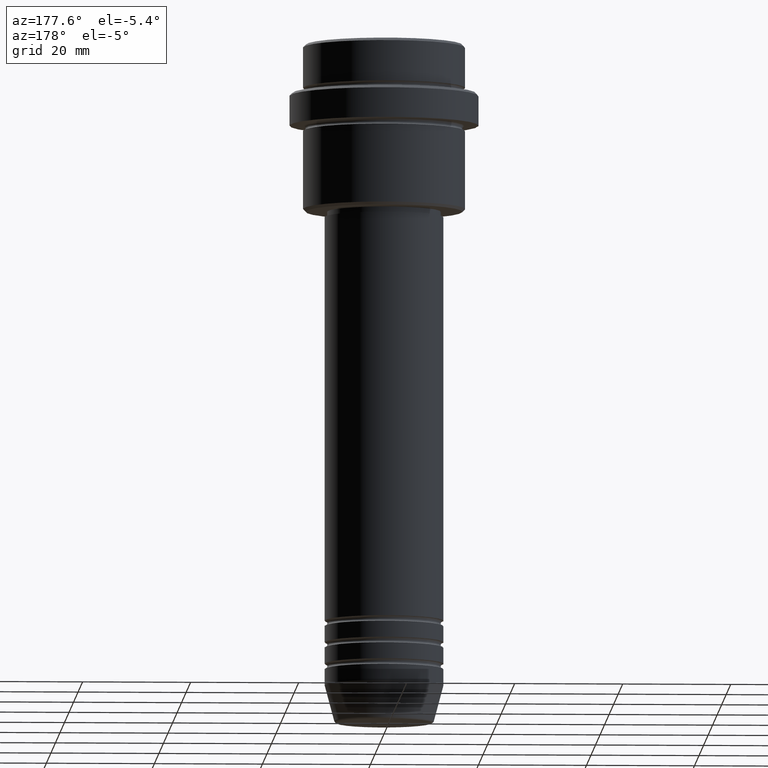
[diagram: clean part render]
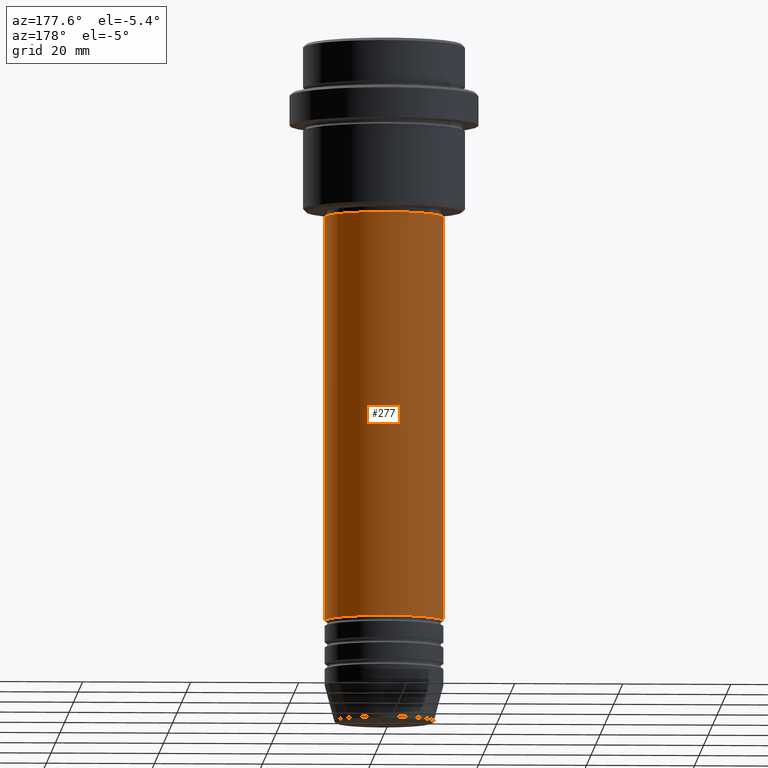
[diagram: same view with one face highlighted and labeled with its STEP entity id]
A machine part, auxiliary view. The second image highlights one B-rep face of the part: STEP entity #277.
In plain terms, the highlighted cylindrical surface (partial cylindrical patch) has radius 11 mm, axis along (-0, -0, 1).
Its self-contained STEP definition (entity closure, byte-faithful):
#13 = VERTEX_POINT ( 'NONE', #219 ) ;
#35 = CARTESIAN_POINT ( 'NONE',  ( -11.00000000000000000, 1.347111479062088405E-15, -106.9999999999998721 ) ) ;
#60 = CYLINDRICAL_SURFACE ( 'NONE', #328, 11.00000000000000000 ) ;
#61 = CARTESIAN_POINT ( 'NONE',  ( 0.000000000000000000, 0.000000000000000000, -31.99999999999997868 ) ) ;
#80 = CARTESIAN_POINT ( 'NONE',  ( 11.00000000000000000, 0.000000000000000000, -106.9999999999998721 ) ) ;
#84 = DIRECTION ( 'NONE',  ( -0.000000000000000000, -0.000000000000000000, 1.000000000000000000 ) ) ;
#176 = DIRECTION ( 'NONE',  ( 1.000000000000000000, 0.000000000000000000, 0.000000000000000000 ) ) ;
#197 = ORIENTED_EDGE ( 'NONE', *, *, #594, .T. ) ;
#217 = VERTEX_POINT ( 'NONE', #80 ) ;
#219 = CARTESIAN_POINT ( 'NONE',  ( 10.99999999999999822, 0.000000000000000000, -31.99999999999997868 ) ) ;
#265 = LINE ( 'NONE', #589, #700 ) ;
#277 = ADVANCED_FACE ( 'NONE', ( #850 ), #60, .T. ) ;
#289 = DIRECTION ( 'NONE',  ( 1.000000000000000000, 0.000000000000000000, 0.000000000000000000 ) ) ;
#328 = AXIS2_PLACEMENT_3D ( 'NONE', #1281, #84, #289 ) ;
#349 = EDGE_CURVE ( 'NONE', #217, #13, #1004, .T. ) ;
#374 = EDGE_LOOP ( 'NONE', ( #946, #197, #982, #1081 ) ) ;
#398 = EDGE_CURVE ( 'NONE', #217, #569, #467, .T. ) ;
#423 = CIRCLE ( 'NONE', #657, 10.99999999999999822 ) ;
#467 = CIRCLE ( 'NONE', #1262, 11.00000000000000000 ) ;
#569 = VERTEX_POINT ( 'NONE', #35 ) ;
#589 = CARTESIAN_POINT ( 'NONE',  ( -11.00000000000000000, 1.347111479062088405E-15, 0.000000000000000000 ) ) ;
#594 = EDGE_CURVE ( 'NONE', #569, #620, #265, .T. ) ;
#620 = VERTEX_POINT ( 'NONE', #734 ) ;
#657 = AXIS2_PLACEMENT_3D ( 'NONE', #61, #1157, #176 ) ;
#669 = DIRECTION ( 'NONE',  ( -0.000000000000000000, -0.000000000000000000, 1.000000000000000000 ) ) ;
#700 = VECTOR ( 'NONE', #1032, 1000.000000000000000 ) ;
#734 = CARTESIAN_POINT ( 'NONE',  ( -10.99999999999999822, 1.347111479062088207E-15, -31.99999999999997868 ) ) ;
#781 = CARTESIAN_POINT ( 'NONE',  ( 0.000000000000000000, 0.000000000000000000, -106.9999999999998721 ) ) ;
#850 = FACE_OUTER_BOUND ( 'NONE', #374, .T. ) ;
#946 = ORIENTED_EDGE ( 'NONE', *, *, #398, .T. ) ;
#982 = ORIENTED_EDGE ( 'NONE', *, *, #1369, .F. ) ;
#999 = CARTESIAN_POINT ( 'NONE',  ( 11.00000000000000000, 0.000000000000000000, 0.000000000000000000 ) ) ;
#1004 = LINE ( 'NONE', #999, #1066 ) ;
#1032 = DIRECTION ( 'NONE',  ( -0.000000000000000000, -0.000000000000000000, 1.000000000000000000 ) ) ;
#1066 = VECTOR ( 'NONE', #1304, 1000.000000000000000 ) ;
#1081 = ORIENTED_EDGE ( 'NONE', *, *, #349, .F. ) ;
#1116 = DIRECTION ( 'NONE',  ( 1.000000000000000000, 0.000000000000000000, 0.000000000000000000 ) ) ;
#1157 = DIRECTION ( 'NONE',  ( -0.000000000000000000, -0.000000000000000000, 1.000000000000000000 ) ) ;
#1262 = AXIS2_PLACEMENT_3D ( 'NONE', #781, #669, #1116 ) ;
#1281 = CARTESIAN_POINT ( 'NONE',  ( 0.000000000000000000, 0.000000000000000000, 0.000000000000000000 ) ) ;
#1304 = DIRECTION ( 'NONE',  ( -0.000000000000000000, -0.000000000000000000, 1.000000000000000000 ) ) ;
#1369 = EDGE_CURVE ( 'NONE', #13, #620, #423, .T. ) ;